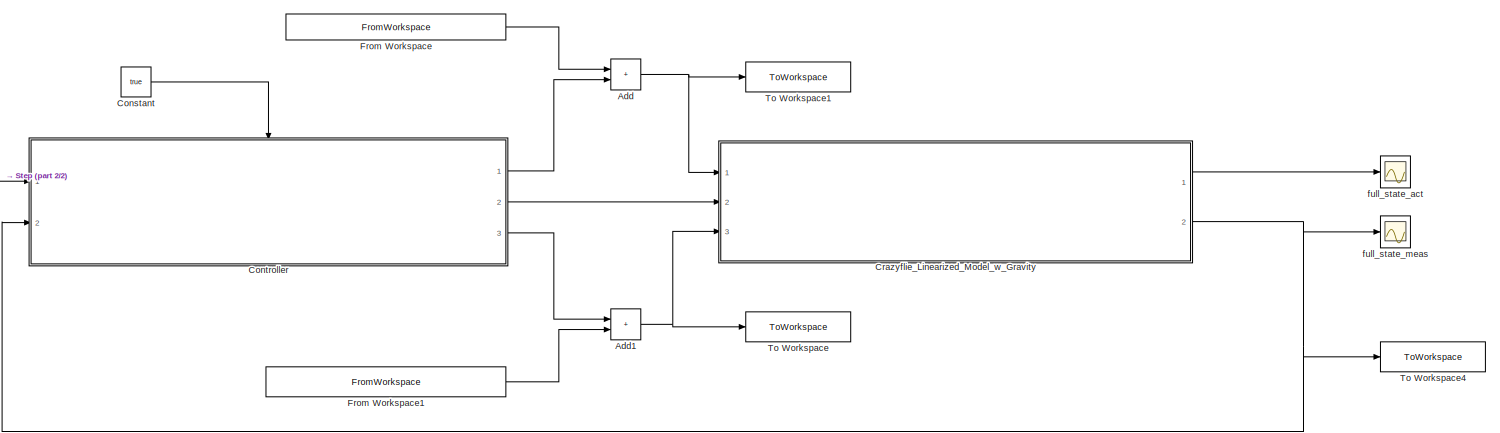
[diagram: root canvas - part 1/2, most of the canvas]
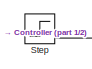
[diagram: root canvas - part 2/2, middle left region]
MODEL slx_ef30d5922a94
KIND model
CONFIG AbsTol = auto
CONFIG EnableMultiTasking = off
CONFIG FixedStep = auto
CONFIG MaxStep = auto
CONFIG MinStep = auto
CONFIG RelTol = 1e-3
CONFIG SampleTimeConstraint = Unconstrained
CONFIG SolverName = VariableStepAuto
CONFIG StartTime = 0.0
CONFIG StopTime = exc_param.sim_time
BLOCK [Sum] Add
  IconShape = rectangular
  Ports = [2, 1]
BLOCK [Sum] Add1
  IconShape = rectangular
  Ports = [2, 1]
BLOCK [Constant] Constant
  Value = true
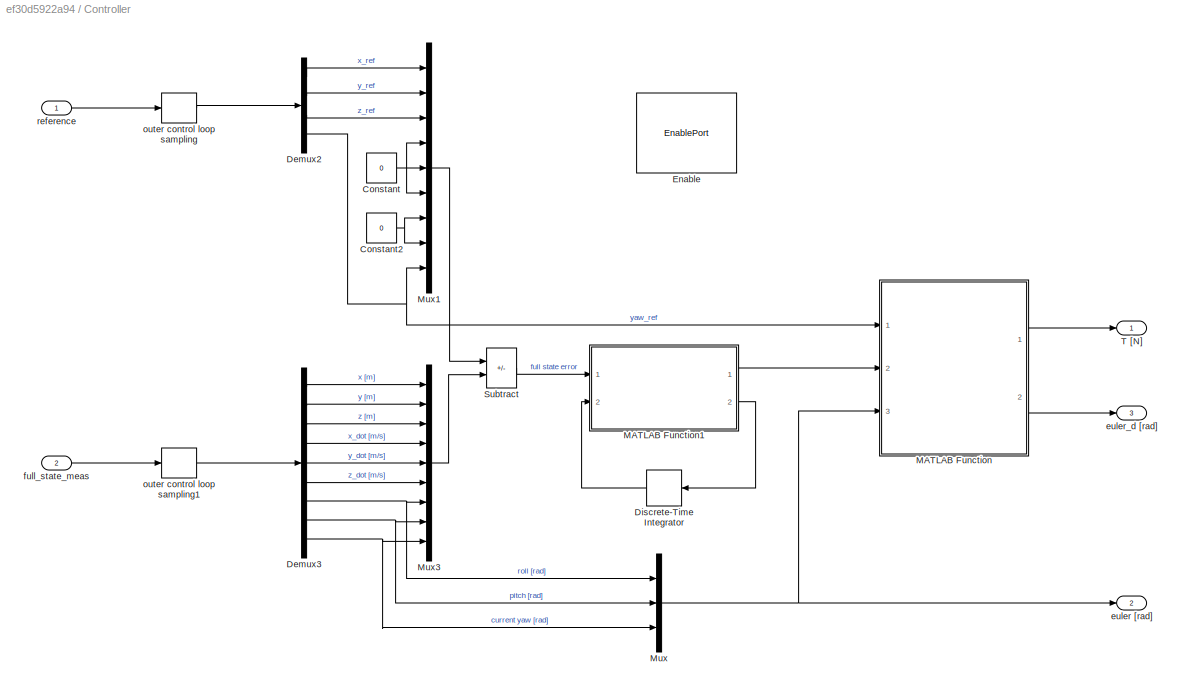
BLOCK [SubSystem] Controller
  AncestorBlock = Crazyflie_Library/LQR_Controller
  Ports = [2, 3, 1]
  RequestExecContextInheritance = off
BLOCK [Constant] Controller/Constant
  Value = 0
BLOCK [Constant] Controller/Constant2
  Value = 0
BLOCK [Demux] Controller/Demux2
  Ports = [1, 4]
BLOCK [Demux] Controller/Demux3
  Outputs = 9
  Ports = [1, 9]
BLOCK [DiscreteIntegrator] Controller/Discrete-Time Integrator
  ICPrevOutput = DiscIntNeverNeededParam
  ICPrevScaledInput = DiscIntNeverNeededParam
  InitialCondition = [0;0;0]
  InitialConditionSetting = Auto
  NameLocation = top
  Ports = [1, 1]
  SampleTime = -1
BLOCK [EnablePort] Controller/Enable
  Ports = []
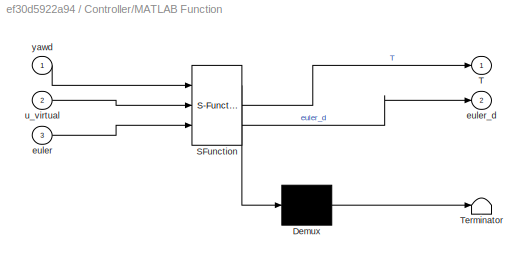
BLOCK [SubSystem] Controller/MATLAB Function
  ErrorFcn = Stateflow.Translate.translate
  PermitHierarchicalResolution = ExplicitOnly
  Ports = [3, 2]
  RequestExecContextInheritance = off
  SFBlockType = MATLAB Function
  TreatAsAtomicUnit = on
BLOCK [Demux] Controller/MATLAB Function/ Demux 
  Outputs = 1
  Ports = [1, 1]
BLOCK [S-Function] Controller/MATLAB Function/ SFunction 
  EnableBusSupport = on
  FunctionName = sf_sfun
  Parameters = accel_g,mass
  PortCounts = [3 3]
  Ports = [3, 3]
  SFcnIsStateOwnerBlock = off
  SFunctionDeploymentMode = off
  Tag = Stateflow S-Function 2
BLOCK [Terminator] Controller/MATLAB Function/ Terminator 
BLOCK [Outport] Controller/MATLAB Function/T
BLOCK [Inport] Controller/MATLAB Function/euler
  Port = 3
BLOCK [Outport] Controller/MATLAB Function/euler_d
  Port = 2
BLOCK [Inport] Controller/MATLAB Function/u_virtual
  Port = 2
BLOCK [Inport] Controller/MATLAB Function/yawd
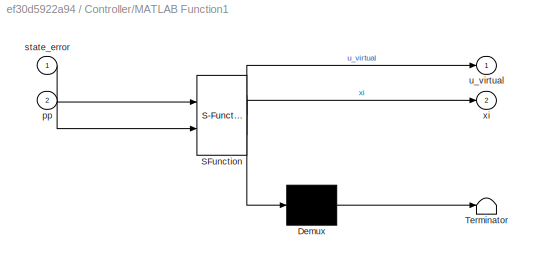
BLOCK [SubSystem] Controller/MATLAB Function1
  ErrorFcn = Stateflow.Translate.translate
  PermitHierarchicalResolution = ExplicitOnly
  Ports = [2, 2]
  RequestExecContextInheritance = off
  SFBlockType = MATLAB Function
  TreatAsAtomicUnit = on
BLOCK [Demux] Controller/MATLAB Function1/ Demux 
  Outputs = 1
  Ports = [1, 1]
BLOCK [S-Function] Controller/MATLAB Function1/ SFunction 
  EnableBusSupport = on
  FunctionName = sf_sfun
  Parameters = Ki_xy,Ki_z,Kp_xy,Kp_z,Kv_xy,Kv_z
  PortCounts = [2 3]
  Ports = [2, 3]
  SFcnIsStateOwnerBlock = off
  SFunctionDeploymentMode = off
  Tag = Stateflow S-Function 1
BLOCK [Terminator] Controller/MATLAB Function1/ Terminator 
BLOCK [Inport] Controller/MATLAB Function1/pp
  Port = 2
BLOCK [Inport] Controller/MATLAB Function1/state_error
BLOCK [Outport] Controller/MATLAB Function1/u_virtual
BLOCK [Outport] Controller/MATLAB Function1/xi
  Port = 2
BLOCK [Mux] Controller/Mux
  DisplayOption = bar
  Inputs = 3
  Ports = [3, 1]
BLOCK [Mux] Controller/Mux1
  DisplayOption = bar
  Inputs = 9
  Ports = [9, 1]
BLOCK [Mux] Controller/Mux3
  DisplayOption = bar
  Inputs = 9
  Ports = [9, 1]
BLOCK [Sum] Controller/Subtract
  IconShape = rectangular
  Inputs = +-
  Ports = [2, 1]
BLOCK [Outport] Controller/T [N]
BLOCK [Outport] Controller/euler [rad]
  Port = 2
BLOCK [Outport] Controller/euler_d [rad]
  Port = 3
BLOCK [Inport] Controller/full_state_meas
  Port = 2
BLOCK [ZeroOrderHold] Controller/outer control loop sampling
  SampleTime = param.sample_time_controller_outer
BLOCK [ZeroOrderHold] Controller/outer control loop sampling1
  SampleTime = param.sample_time_controller_outer
BLOCK [Inport] Controller/reference
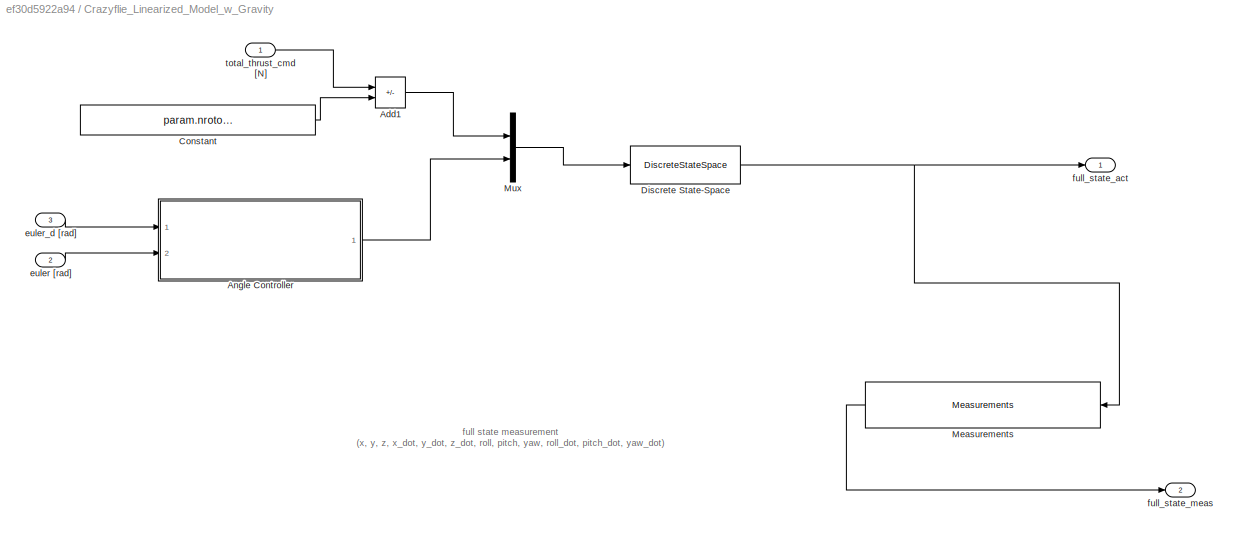
BLOCK [SubSystem] Crazyflie_Linearized_Model_w_Gravity
  AncestorBlock = Crazyflie_Library/Crazyflie_Linearized_Model_w_Gravity
  Ports = [3, 2]
  RequestExecContextInheritance = off
BLOCK [Sum] Crazyflie_Linearized_Model_w_Gravity/Add1
  IconShape = rectangular
  Inputs = +-
  Ports = [2, 1]
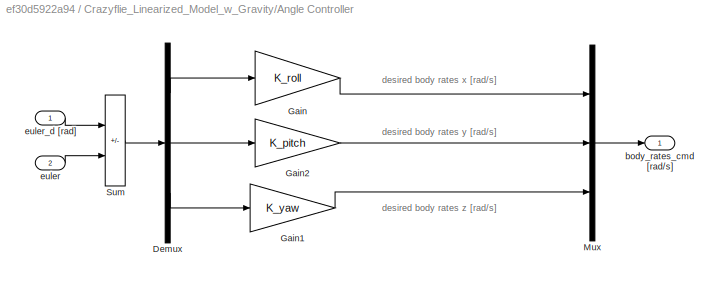
BLOCK [SubSystem] Crazyflie_Linearized_Model_w_Gravity/Angle Controller
  Ports = [2, 1]
  RequestExecContextInheritance = off
BLOCK [Demux] Crazyflie_Linearized_Model_w_Gravity/Angle Controller/Demux
  Outputs = 3
  Ports = [1, 3]
BLOCK [Gain] Crazyflie_Linearized_Model_w_Gravity/Angle Controller/Gain
  Gain = K_roll
  Multiplication = Matrix(K*u)
BLOCK [Gain] Crazyflie_Linearized_Model_w_Gravity/Angle Controller/Gain1
  Gain = K_yaw
  Multiplication = Matrix(K*u)
BLOCK [Gain] Crazyflie_Linearized_Model_w_Gravity/Angle Controller/Gain2
  Gain = K_pitch
  Multiplication = Matrix(K*u)
BLOCK [Mux] Crazyflie_Linearized_Model_w_Gravity/Angle Controller/Mux
  DisplayOption = bar
  Inputs = 3
  Ports = [3, 1]
BLOCK [Sum] Crazyflie_Linearized_Model_w_Gravity/Angle Controller/Sum
  IconShape = rectangular
  Inputs = +-
  Ports = [2, 1]
BLOCK [Outport] Crazyflie_Linearized_Model_w_Gravity/Angle Controller/body_rates_cmd [rad//s]
BLOCK [Inport] Crazyflie_Linearized_Model_w_Gravity/Angle Controller/euler
  Port = 2
BLOCK [Inport] Crazyflie_Linearized_Model_w_Gravity/Angle Controller/euler_d [rad]
BLOCK [Constant] Crazyflie_Linearized_Model_w_Gravity/Constant
  Value = param.nrotor_vehicle_mass_true * param.g
BLOCK [DiscreteStateSpace] Crazyflie_Linearized_Model_w_Gravity/Discrete State-Space
  A = param.Ad_sys
  B = param.Bd_sys
  C = eye(9)
  D = zeros(9,4)
  InitialCondition = param.nrotor_initial_condition(1:9)
  SampleTime = 0.04
BLOCK [Reference] Crazyflie_Linearized_Model_w_Gravity/Measurements  REF=Crazyflie_Library/Crazyflie_Linearized_Model_w_Gravity/Measurements
  Ports = [1, 1]
  SourceBlock = Crazyflie_Library/Crazyflie_Linearized_Model_w_Gravity/Measurements
  SourceType = SubSystem
BLOCK [Mux] Crazyflie_Linearized_Model_w_Gravity/Mux
  DisplayOption = bar
  Inputs = 2
  Ports = [2, 1]
BLOCK [Inport] Crazyflie_Linearized_Model_w_Gravity/euler [rad]
  Port = 2
BLOCK [Inport] Crazyflie_Linearized_Model_w_Gravity/euler_d [rad]
  Port = 3
BLOCK [Outport] Crazyflie_Linearized_Model_w_Gravity/full_state_act
  VectorParamsAs1DForOutWhenUnconnected = off
BLOCK [Outport] Crazyflie_Linearized_Model_w_Gravity/full_state_meas
  Port = 2
  VectorParamsAs1DForOutWhenUnconnected = off
BLOCK [Inport] Crazyflie_Linearized_Model_w_Gravity/total_thrust_cmd [N]
BLOCK [FromWorkspace] From Workspace
  OutputAfterFinalValue = Setting to zero
  SampleTime = exc_param.exc_sample_time
  VariableName = exc_param.thrust_exc_signal_matrix
BLOCK [FromWorkspace] From Workspace1
  OutputAfterFinalValue = Setting to zero
  SampleTime = exc_param.exc_sample_time
  VariableName = exc_param.eulerd_exc_signal_matrix
BLOCK [Step] Step
  After = [param.nrotor_initial_condition(1:3); param.nrotor_initial_condition(9)]
  Before = [param.nrotor_initial_condition(1:3); param.nrotor_initial_condition(9)]
  SampleTime = 0
  Time = 0
BLOCK [ToWorkspace] To Workspace
  FixptAsFi = on
  MaxDataPoints = inf
  Ports = [1]
  SampleTime = exc_param.exc_sample_time
  VariableName = eulerd_cmd
BLOCK [ToWorkspace] To Workspace1
  FixptAsFi = on
  MaxDataPoints = inf
  Ports = [1]
  SampleTime = exc_param.exc_sample_time
  VariableName = total_thrust_cmd
BLOCK [ToWorkspace] To Workspace4
  FixptAsFi = on
  MaxDataPoints = inf
  Ports = [1]
  SampleTime = exc_param.exc_sample_time
  VariableName = full_state_meas
BLOCK [Scope] full_state_act
  Floating = off
  NameLocation = right
  NumInputPorts = 1
  Ports = [1]
  ScopeSpecificationString = Simulink.scopes.TimeScopeBlockCfg('CurrentConfiguration', extmgr.ConfigurationSet(extmgr.Configuration('Core','General UI',true),extmgr.Configuration('Core','Source UI',true),extmgr.Configuration('Sources','WiredSimulink',true,'DataLoggingVariableName','ScopeData1'),extmgr.Configuration('Visuals','Time Domain',true,'SerializedDisplays',{struct('MinYLimReal','-0.125','MaxYLimReal','1.125','YLabelRe...<+2137ch>
BLOCK [Scope] full_state_meas
  Floating = off
  NameLocation = right
  NumInputPorts = 1
  Ports = [1]
  ScopeSpecificationString = Simulink.scopes.TimeScopeBlockCfg('CurrentConfiguration', extmgr.ConfigurationSet(extmgr.Configuration('Core','General UI',true),extmgr.Configuration('Core','Source UI',true),extmgr.Configuration('Sources','WiredSimulink',true,'DataLoggingVariableName','ScopeData2'),extmgr.Configuration('Visuals','Time Domain',true,'SerializedDisplays',{struct('MinYLimReal','-0.52647','MaxYLimReal','1.18026','YLab...<+1842ch>
ANNOTATION Crazyflie_Linearized_Model_w_Gravity: full state measurement (x, y, z, x_dot, y_dot, z_dot, roll, pitch, yaw, roll_dot, pitch_dot, yaw_dot)
ANNOTATION Crazyflie_Linearized_Model_w_Gravity/Angle Controller: desired body rates x [rad/s]
ANNOTATION Crazyflie_Linearized_Model_w_Gravity/Angle Controller: desired body rates y [rad/s]
ANNOTATION Crazyflie_Linearized_Model_w_Gravity/Angle Controller: desired body rates z [rad/s]
NET Add1:1 -> Crazyflie_Linearized_Model_w_Gravity:3, To Workspace:1
NET Add:1 -> Crazyflie_Linearized_Model_w_Gravity:1, To Workspace1:1
LINE Constant:1 -> Controller:enable
LINE Controller:1 -> Add:2
LINE Controller:2 -> Crazyflie_Linearized_Model_w_Gravity:2
LINE Controller:3 -> Add1:1
LINE Crazyflie_Linearized_Model_w_Gravity:1 -> full_state_act:1
NET Crazyflie_Linearized_Model_w_Gravity:2 -> Controller:2, To Workspace4:1, full_state_meas:1
LINE From Workspace1:1 -> Add1:2
LINE From Workspace:1 -> Add:1
LINE Step:1 -> Controller:1
note: NET lines group one-source signal fan-out (src -> all destinations, sorted); 1:1 wires keep LINE
CHART Controller/MATLAB Function1 states=1 transitions=1
  STATE_LABEL 'eML_blk_kernel()'
  STATE_LABEL 'SCRIPT:\nfunction [u_virtual,xi] = Controller(state_error, pp, Kp_xy, Kv_xy, Kp_z, Kv_z, Ki_xy, Ki_z)\n\np_err = state_error(1:3);\nv_err = state_error(4:6);\n\nu_virtual = zeros(3,1);\nxi = zeros(3,1);\n\n% Kv = -4;\n% Kp = -4;\n% Ki = 0;\n% u = Kp*(p_err) + Kv*(v_err) + Ki*pp;\n% u_virtual = u(:);\n\nu_xy = Kv_xy*(v_err(1:2)) + Kp_xy*(p_err(1:2)) + Ki_xy*pp(1:2);\n\nu_z = Kp_z*(p_err(3)) + Kv_z*(v_err(3)) + Ki_z...<+45ch>'
CHART Controller/MATLAB Function states=1 transitions=1
  STATE_LABEL 'eML_blk_kernel()'
  STATE_LABEL "SCRIPT:\nfunction [T, euler_d] = input_transform(yawd, u_virtual, euler, mass, accel_g)\n\nT = 0;\neuler_d = zeros(3,1);\n\n% Compute pitch, roll and T\nRz = eul2rotm([euler(3,1),0,0],'ZYX');\n\nT_aux = mass * Rz'*(accel_g*[0;0;1] - u_virtual);\n% pitchd = atan2(T_aux(1),T_aux(3));\n% rolld = atan2(-T_aux(2),norm(T_aux([1,3])));\npitchd = T_aux(1);\nrolld = -T_aux(2);\n\neuler_d = [rolld;pitchd;yawd];\n\n% T = nor...<+44ch>"
CHART  states=0 transitions=0
CHART  states=0 transitions=0
